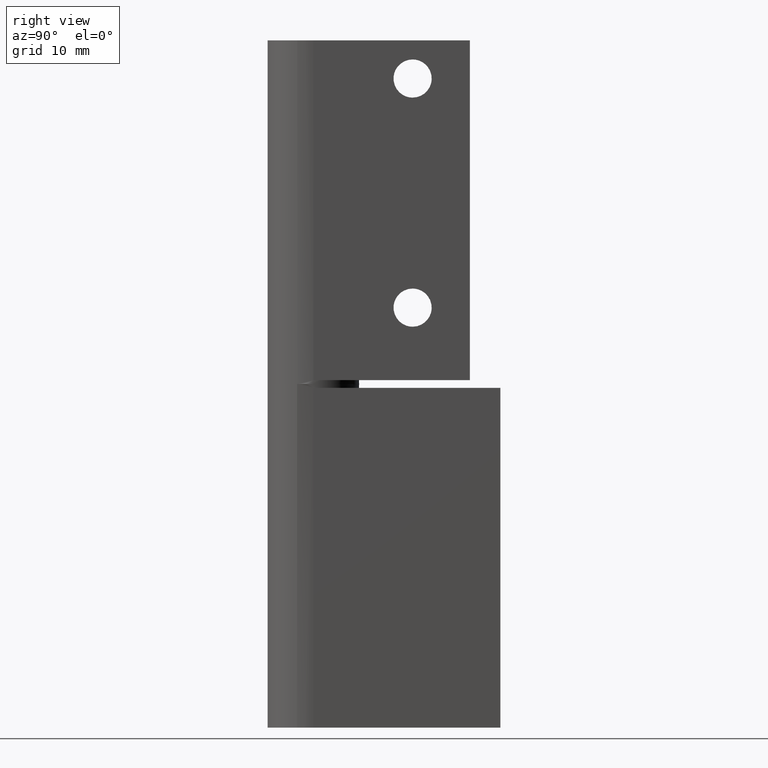
[diagram: clean part render]
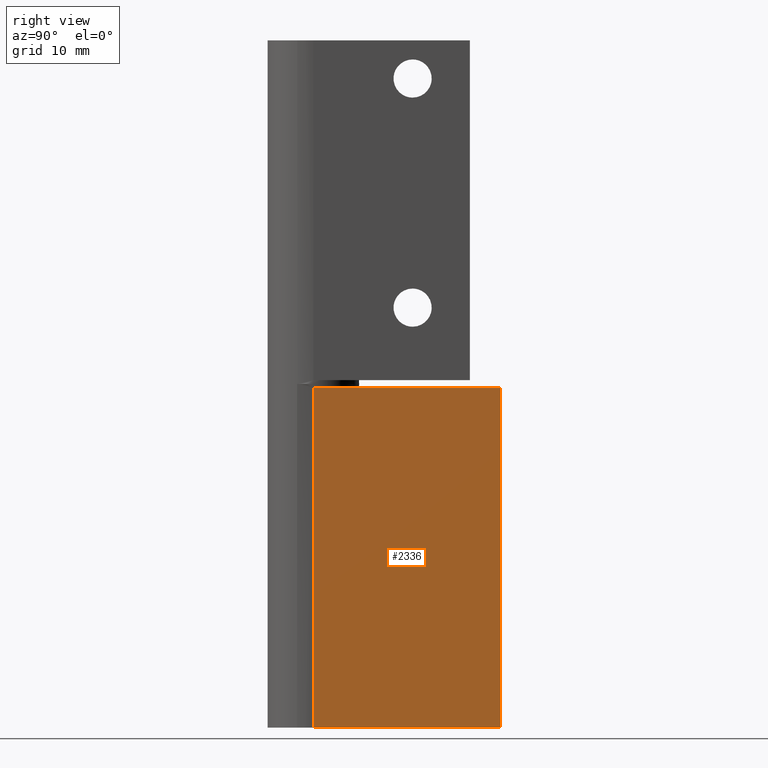
[diagram: same view with one face highlighted and labeled with its STEP entity id]
A machine part, right view. The second image highlights one B-rep face of the part: STEP entity #2336.
In plain terms, the highlighted face is a freeform B-spline surface patch.
Its self-contained STEP definition (entity closure, byte-faithful):
#1041=CARTESIAN_POINT('',(6.000000284984660,-0.000000674925422,1.110223E-013));
#1042=VERTEX_POINT('',#1041);
#1056=CARTESIAN_POINT('',(5.999999999999901,0.0,44.500002113636803));
#1057=VERTEX_POINT('',#1056);
#1058=CARTESIAN_POINT('',(6.000000284984660,-0.000000674925422,1.110223E-013));
#1059=CARTESIAN_POINT('',(5.999999999999901,0.0,44.500002113636803));
#1060=QUASI_UNIFORM_CURVE('',1,(#1058,#1059),.UNSPECIFIED.,.F.,.U.);
#1061=EDGE_CURVE('',#1042,#1057,#1060,.T.);
#2290=CARTESIAN_POINT('',(6.000000284984610,24.500000000000000,1.110223E-013));
#2291=VERTEX_POINT('',#2290);
#2299=CARTESIAN_POINT('',(6.000000284984660,-0.000000674925422,1.110223E-013));
#2300=CARTESIAN_POINT('',(6.000000284984610,24.500000000000000,1.110223E-013));
#2301=QUASI_UNIFORM_CURVE('',1,(#2299,#2300),.UNSPECIFIED.,.F.,.U.);
#2302=EDGE_CURVE('',#1042,#2291,#2301,.T.);
#2315=CARTESIAN_POINT('',(6.000000284984610,-1.223775661152189,46.722779221634219));
#2316=CARTESIAN_POINT('',(6.000000284984610,-1.223775661152189,-2.222776312275263));
#2317=CARTESIAN_POINT('',(6.000000284984610,25.723775643367990,46.722779221634219));
#2318=CARTESIAN_POINT('',(6.000000284984610,25.723775643367990,-2.222776312275263));
#2319=B_SPLINE_SURFACE_WITH_KNOTS('',1,1,((#2315,#2317),(#2316,#2318)),.UNSPECIFIED.,.F.,.F.,.U.,(2,2),(2,2),(0.0,48.945555533909477),(0.0,26.947551304520179),.UNSPECIFIED.);
#2320=CARTESIAN_POINT('',(6.000000284984610,24.500000000000000,44.500002113636697));
#2321=VERTEX_POINT('',#2320);
#2322=CARTESIAN_POINT('',(5.999999999999901,0.0,44.500002113636803));
#2323=CARTESIAN_POINT('',(6.000000284984610,24.500000000000000,44.500002113636697));
#2324=QUASI_UNIFORM_CURVE('',1,(#2322,#2323),.UNSPECIFIED.,.F.,.U.);
#2325=EDGE_CURVE('',#1057,#2321,#2324,.T.);
#2326=ORIENTED_EDGE('',*,*,#2325,.F.);
#2327=ORIENTED_EDGE('',*,*,#1061,.F.);
#2328=ORIENTED_EDGE('',*,*,#2302,.T.);
#2329=CARTESIAN_POINT('',(6.000000284984610,24.500000000000000,1.110223E-013));
#2330=CARTESIAN_POINT('',(6.000000284984610,24.500000000000000,44.500002113636697));
#2331=QUASI_UNIFORM_CURVE('',1,(#2329,#2330),.UNSPECIFIED.,.F.,.U.);
#2332=EDGE_CURVE('',#2291,#2321,#2331,.T.);
#2333=ORIENTED_EDGE('',*,*,#2332,.T.);
#2334=EDGE_LOOP('',(#2326,#2327,#2328,#2333));
#2335=FACE_OUTER_BOUND('',#2334,.T.);
#2336=ADVANCED_FACE('',(#2335),#2319,.T.);